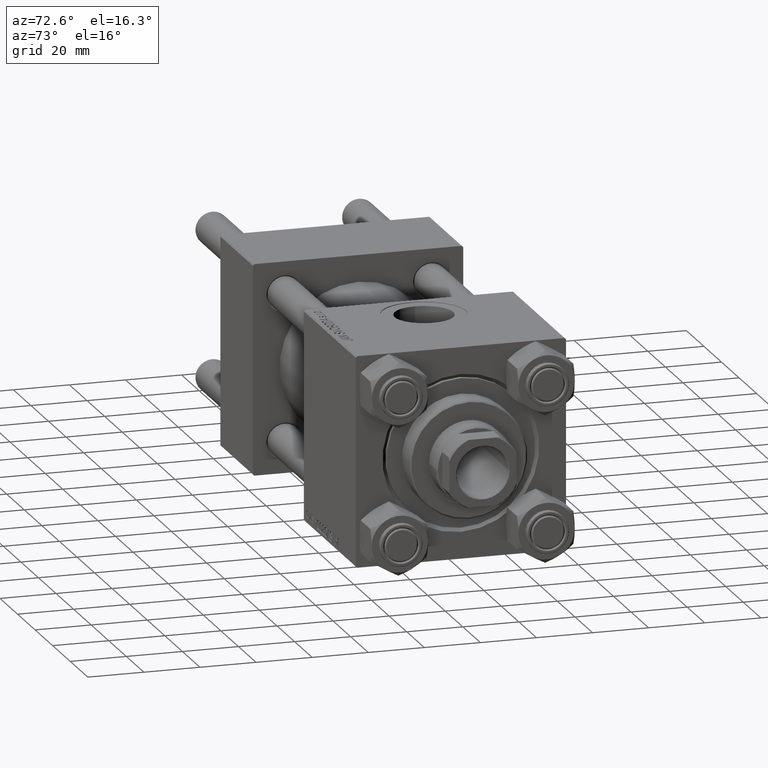
[diagram: clean part render]
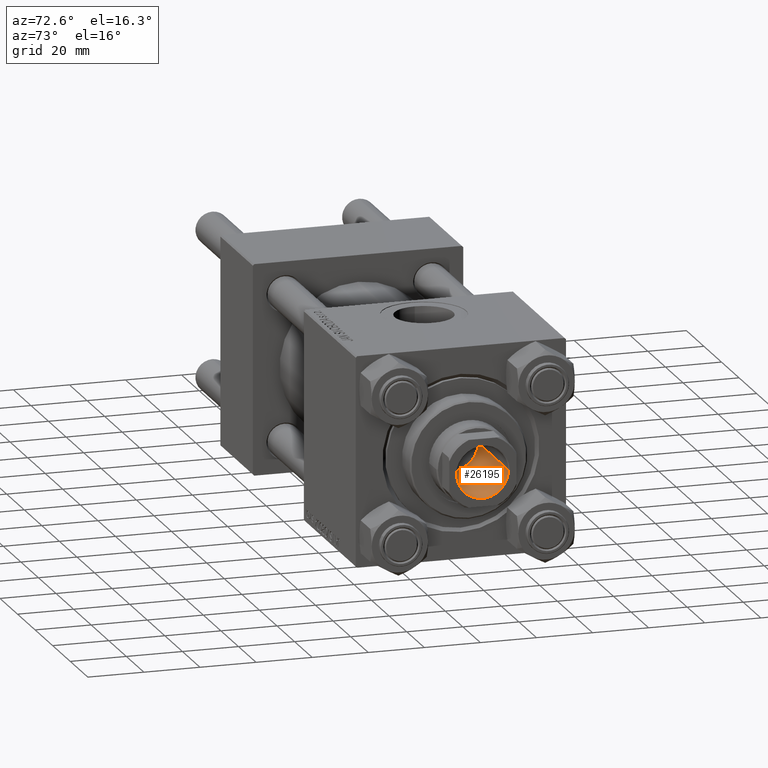
[diagram: same view with one face highlighted and labeled with its STEP entity id]
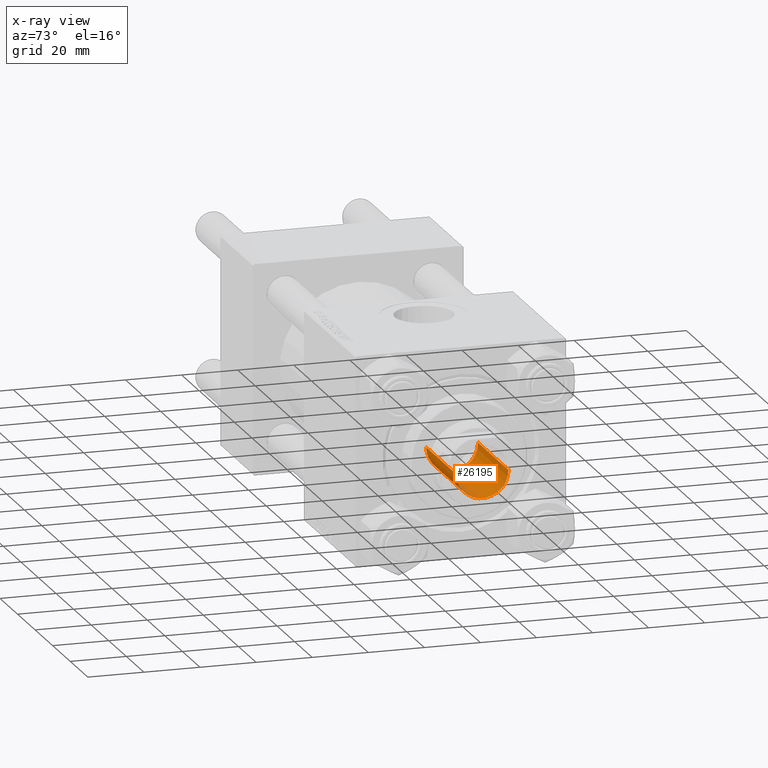
[diagram: x-ray of the same camera — body ghosted, the highlighted face saturated]
A machine part, auxiliary view. The second image highlights one B-rep face of the part: STEP entity #26195.
The next image is the same camera in x-ray: the body ghosted, the highlighted face saturated — about 1% of this face is hidden behind the body in this view.
In plain terms, the highlighted cylindrical surface (edge-blend (fillet) strip) has radius 9.25 mm, axis along (1, 0, -0).
Its self-contained STEP definition (entity closure, byte-faithful):
#19 = CARTESIAN_POINT ( 'NONE',  ( -9.249999999999994671, 1.132798289211300909E-15, 141.7000000000000171 ) ) ;
#3862 = CYLINDRICAL_SURFACE ( 'NONE', #46886, 9.249999999999994671 ) ;
#7643 = DIRECTION ( 'NONE',  ( -0.000000000000000000, -0.000000000000000000, 1.000000000000000000 ) ) ;
#8206 = EDGE_CURVE ( 'NONE', #13367, #12551, #36062, .T. ) ;
#8421 = CARTESIAN_POINT ( 'NONE',  ( 0.000000000000000000, 0.000000000000000000, 107.0000000000000142 ) ) ;
#9004 = ORIENTED_EDGE ( 'NONE', *, *, #36989, .F. ) ;
#12019 = ORIENTED_EDGE ( 'NONE', *, *, #43952, .T. ) ;
#12551 = VERTEX_POINT ( 'NONE', #19 ) ;
#13367 = VERTEX_POINT ( 'NONE', #33075 ) ;
#13533 = DIRECTION ( 'NONE',  ( -0.000000000000000000, -0.000000000000000000, 1.000000000000000000 ) ) ;
#15441 = DIRECTION ( 'NONE',  ( -0.000000000000000000, -0.000000000000000000, 1.000000000000000000 ) ) ;
#15821 = ORIENTED_EDGE ( 'NONE', *, *, #8206, .T. ) ;
#17172 = CARTESIAN_POINT ( 'NONE',  ( 9.249999999999992895, 0.000000000000000000, 107.0000000000000142 ) ) ;
#17853 = CARTESIAN_POINT ( 'NONE',  ( -9.249999999999992895, 1.132798289211300712E-15, 107.0000000000000142 ) ) ;
#23266 = VERTEX_POINT ( 'NONE', #17172 ) ;
#24223 = FACE_OUTER_BOUND ( 'NONE', #40541, .T. ) ;
#24369 = LINE ( 'NONE', #47498, #49184 ) ;
#26195 = ADVANCED_FACE ( 'NONE', ( #24223 ), #3862, .F. ) ;
#26408 = CARTESIAN_POINT ( 'NONE',  ( 0.000000000000000000, 0.000000000000000000, 141.7000000000000171 ) ) ;
#27207 = AXIS2_PLACEMENT_3D ( 'NONE', #26408, #30181, #30912 ) ;
#27271 = CARTESIAN_POINT ( 'NONE',  ( 0.000000000000000000, 0.000000000000000000, 142.0000000000000284 ) ) ;
#30181 = DIRECTION ( 'NONE',  ( 0.000000000000000000, 0.000000000000000000, 1.000000000000000000 ) ) ;
#30276 = AXIS2_PLACEMENT_3D ( 'NONE', #8421, #34848, #46413 ) ;
#30912 = DIRECTION ( 'NONE',  ( 1.000000000000000000, 0.000000000000000000, 0.000000000000000000 ) ) ;
#33075 = CARTESIAN_POINT ( 'NONE',  ( 9.249999999999994671, 0.000000000000000000, 141.7000000000000171 ) ) ;
#34552 = LINE ( 'NONE', #46607, #42894 ) ;
#34848 = DIRECTION ( 'NONE',  ( -0.000000000000000000, -0.000000000000000000, 1.000000000000000000 ) ) ;
#35741 = VERTEX_POINT ( 'NONE', #17853 ) ;
#36062 = CIRCLE ( 'NONE', #27207, 9.249999999999994671 ) ;
#36989 = EDGE_CURVE ( 'NONE', #23266, #35741, #39108, .T. ) ;
#39108 = CIRCLE ( 'NONE', #30276, 9.249999999999992895 ) ;
#40541 = EDGE_LOOP ( 'NONE', ( #43510, #9004, #12019, #15821 ) ) ;
#42601 = DIRECTION ( 'NONE',  ( 1.000000000000000000, 0.000000000000000000, 0.000000000000000000 ) ) ;
#42894 = VECTOR ( 'NONE', #7643, 1000.000000000000000 ) ;
#43510 = ORIENTED_EDGE ( 'NONE', *, *, #49500, .F. ) ;
#43952 = EDGE_CURVE ( 'NONE', #23266, #13367, #24369, .T. ) ;
#46413 = DIRECTION ( 'NONE',  ( 1.000000000000000000, 0.000000000000000000, 0.000000000000000000 ) ) ;
#46607 = CARTESIAN_POINT ( 'NONE',  ( -9.249999999999994671, 1.132798289211300909E-15, 142.0000000000000284 ) ) ;
#46886 = AXIS2_PLACEMENT_3D ( 'NONE', #27271, #15441, #42601 ) ;
#47498 = CARTESIAN_POINT ( 'NONE',  ( 9.249999999999994671, 0.000000000000000000, 142.0000000000000284 ) ) ;
#49184 = VECTOR ( 'NONE', #13533, 1000.000000000000000 ) ;
#49500 = EDGE_CURVE ( 'NONE', #35741, #12551, #34552, .T. ) ;